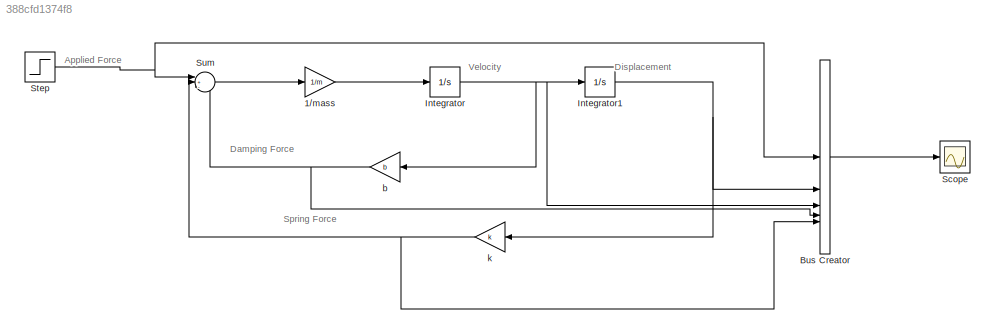
MODEL slx_388cfd1374f8
KIND model
CONFIG AbsTol = auto
CONFIG EnableMultiTasking = off
CONFIG FixedStep = auto
CONFIG MaxStep = auto
CONFIG MinStep = auto
CONFIG RelTol = 1e-3
CONFIG SampleTimeConstraint = Unconstrained
CONFIG SolverName = VariableStepAuto
CONFIG StartTime = 0.0
CONFIG StopTime = 10.0
BLOCK [Gain] 1//mass
  Gain = 1/m
BLOCK [BusCreator] Bus Creator
  DisplayOption = bar
  InheritFromInputs = on
  Inputs = 5
BLOCK [Integrator] Integrator
BLOCK [Integrator] Integrator1
BLOCK [Scope] Scope
  Floating = off
  NumInputPorts = 1
  ScopeSpecificationString = Simulink.scopes.TimeScopeBlockCfg('CurrentConfiguration', extmgr.ConfigurationSet(extmgr.Configuration('Core','General UI',true,'FigureColor',[1 1 1]),extmgr.Configuration('Core','Source UI',true),extmgr.Configuration('Sources','WiredSimulink',true),extmgr.Configuration('Visuals','Time Domain',true,'SerializedDisplays',{struct('MinYLimReal','-0.44565','MaxYLimReal','2.55354','YLabelReal','','MinYL...<+1743ch>
BLOCK [Step] Step
  After = 2
  SampleTime = 0
BLOCK [Sum] Sum
  Inputs = |+--
BLOCK [Gain] b
  Gain = b
BLOCK [Gain] k
  Gain = k
ANNOTATION (root): Applied Force
ANNOTATION (root): Damping Force
ANNOTATION (root): Displacement
ANNOTATION (root): Spring Force
ANNOTATION (root): Velocity
LINE 1//mass:1 -> Integrator:1
LINE Bus Creator:1 -> Scope:1
NET Integrator1:1 -> Bus Creator:2, k:1
NET Integrator:1 -> Bus Creator:3, Integrator1:1, b:1
NET Step:1 -> Bus Creator:1, Sum:1
LINE Sum:1 -> 1//mass:1
NET b:1 -> Bus Creator:4, Sum:3
NET k:1 -> Bus Creator:5, Sum:2
note: NET lines group one-source signal fan-out (src -> all destinations, sorted); 1:1 wires keep LINE
